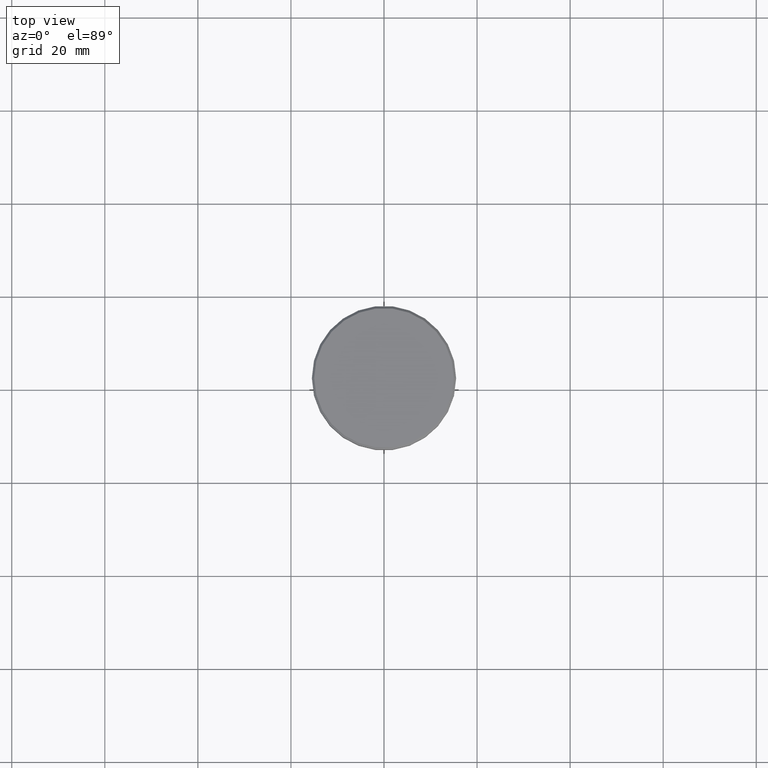
[diagram: clean part render]
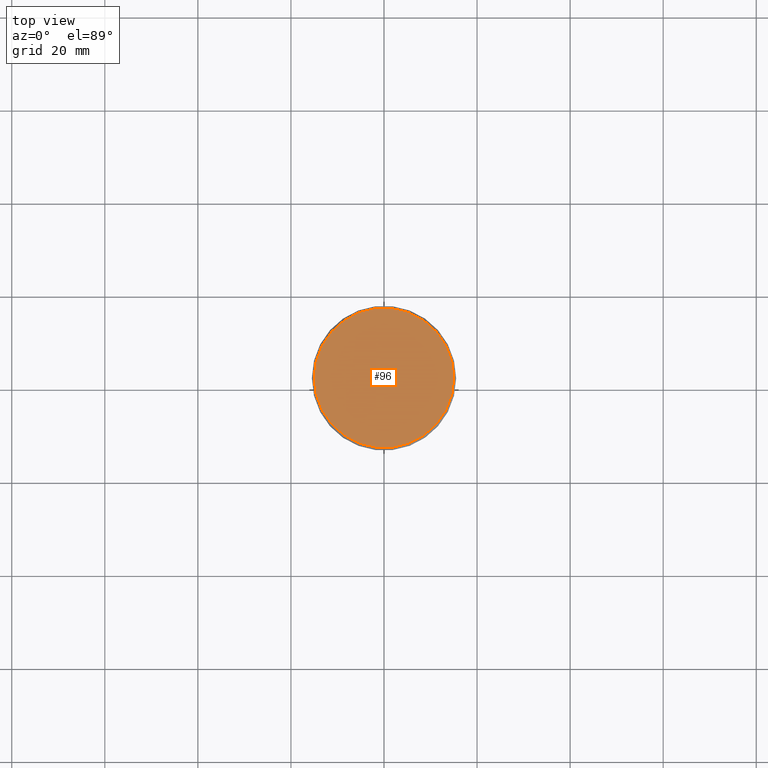
[diagram: same view with one face highlighted and labeled with its STEP entity id]
A machine part, top view. The second image highlights one B-rep face of the part: STEP entity #96.
In plain terms, the highlighted planar face has unit normal (0, -0, 1).
Its self-contained STEP definition (entity closure, byte-faithful):
#14 = CIRCLE ( 'NONE', #698, 14.99999999999997158 ) ;
#21 = EDGE_CURVE ( 'NONE', #223, #384, #14, .T. ) ;
#47 = AXIS2_PLACEMENT_3D ( 'NONE', #482, #592, #111 ) ;
#85 = CIRCLE ( 'NONE', #538, 14.99999999999997158 ) ;
#96 = ADVANCED_FACE ( 'NONE', ( #402 ), #493, .T. ) ;
#111 = DIRECTION ( 'NONE',  ( 1.000000000000000000, 0.000000000000000000, 0.000000000000000000 ) ) ;
#189 = CARTESIAN_POINT ( 'NONE',  ( 0.000000000000000000, 0.000000000000000000, 0.000000000000000000 ) ) ;
#222 = CARTESIAN_POINT ( 'NONE',  ( 14.99999999999997158, 1.867586368699711798E-15, 0.000000000000000000 ) ) ;
#223 = VERTEX_POINT ( 'NONE', #673 ) ;
#322 = ORIENTED_EDGE ( 'NONE', *, *, #1087, .T. ) ;
#384 = VERTEX_POINT ( 'NONE', #222 ) ;
#402 = FACE_OUTER_BOUND ( 'NONE', #1127, .T. ) ;
#466 = DIRECTION ( 'NONE',  ( 1.000000000000000000, 0.000000000000000000, 0.000000000000000000 ) ) ;
#482 = CARTESIAN_POINT ( 'NONE',  ( 0.000000000000000000, 0.000000000000000000, 0.000000000000000000 ) ) ;
#493 = PLANE ( 'NONE',  #47 ) ;
#538 = AXIS2_PLACEMENT_3D ( 'NONE', #649, #574, #466 ) ;
#549 = DIRECTION ( 'NONE',  ( -0.000000000000000000, -0.000000000000000000, 1.000000000000000000 ) ) ;
#574 = DIRECTION ( 'NONE',  ( -0.000000000000000000, -0.000000000000000000, 1.000000000000000000 ) ) ;
#592 = DIRECTION ( 'NONE',  ( 0.000000000000000000, -0.000000000000000000, 1.000000000000000000 ) ) ;
#649 = CARTESIAN_POINT ( 'NONE',  ( 0.000000000000000000, 0.000000000000000000, 0.000000000000000000 ) ) ;
#673 = CARTESIAN_POINT ( 'NONE',  ( -14.99999999999997158, 0.000000000000000000, 0.000000000000000000 ) ) ;
#698 = AXIS2_PLACEMENT_3D ( 'NONE', #189, #549, #926 ) ;
#926 = DIRECTION ( 'NONE',  ( 1.000000000000000000, 0.000000000000000000, 0.000000000000000000 ) ) ;
#993 = ORIENTED_EDGE ( 'NONE', *, *, #21, .T. ) ;
#1087 = EDGE_CURVE ( 'NONE', #384, #223, #85, .T. ) ;
#1127 = EDGE_LOOP ( 'NONE', ( #993, #322 ) ) ;